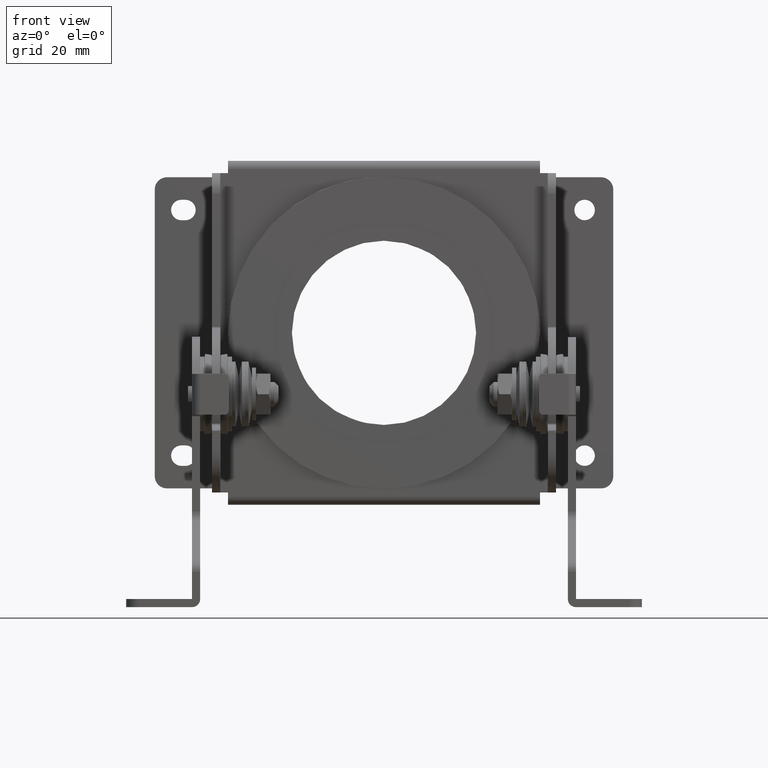
[diagram: clean part render]
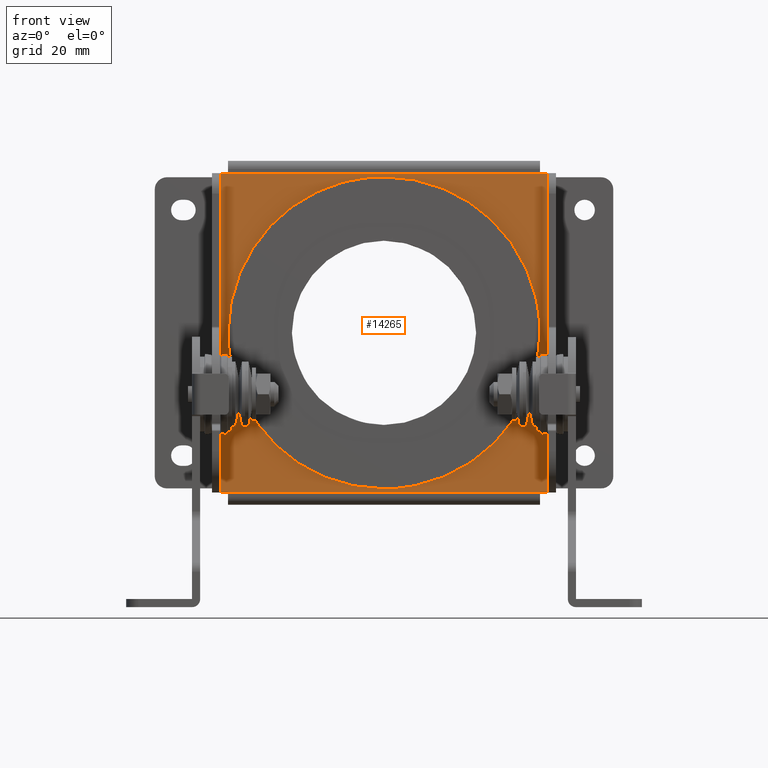
[diagram: same view with one face highlighted and labeled with its STEP entity id]
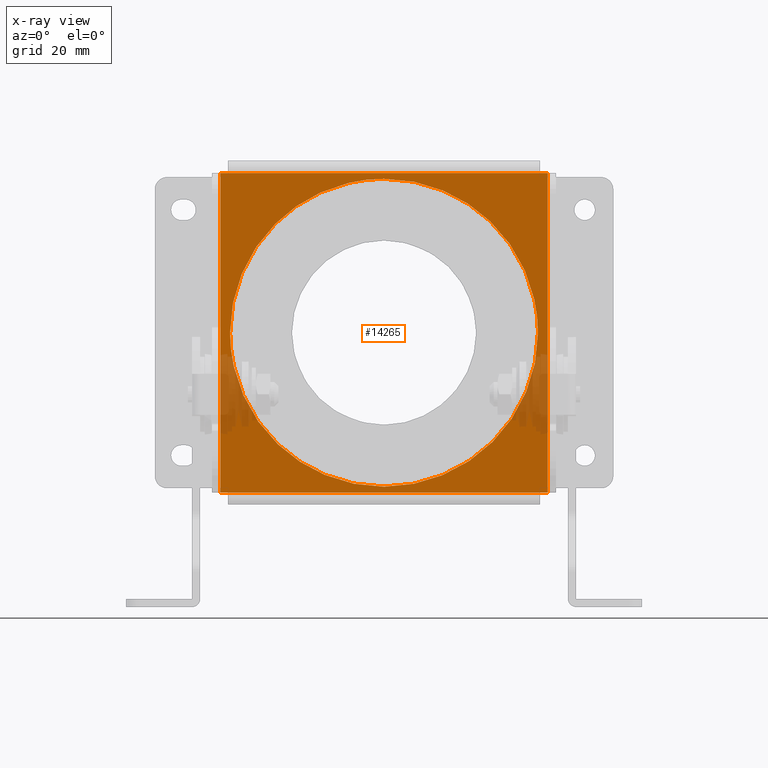
[diagram: x-ray of the same camera — body ghosted, the highlighted face saturated]
A machine part, front view. The second image highlights one B-rep face of the part: STEP entity #14265.
The next image is the same camera in x-ray: the body ghosted, the highlighted face saturated — about 11% of this face is hidden behind the body in this view.
In plain terms, the highlighted face is a freeform B-spline surface patch.
Its self-contained STEP definition (entity closure, byte-faithful):
#14031=CARTESIAN_POINT('',(40.0,-18.100000000000001,-39.0));
#14032=VERTEX_POINT('',#14031);
#14038=CARTESIAN_POINT('',(-40.0,-18.100000000000001,-39.0));
#14039=VERTEX_POINT('',#14038);
#14040=CARTESIAN_POINT('',(-40.0,-18.100000000000001,-39.0));
#14041=CARTESIAN_POINT('',(40.0,-18.100000000000001,-39.0));
#14042=QUASI_UNIFORM_CURVE('',1,(#14040,#14041),.UNSPECIFIED.,.F.,.U.);
#14043=EDGE_CURVE('',#14039,#14032,#14042,.T.);
#14067=CARTESIAN_POINT('',(-40.0,-18.100000000000001,39.0));
#14068=VERTEX_POINT('',#14067);
#14074=CARTESIAN_POINT('',(40.0,-18.100000000000001,39.0));
#14075=VERTEX_POINT('',#14074);
#14076=CARTESIAN_POINT('',(40.0,-18.100000000000001,39.0));
#14077=CARTESIAN_POINT('',(-40.0,-18.100000000000001,39.0));
#14078=QUASI_UNIFORM_CURVE('',1,(#14076,#14077),.UNSPECIFIED.,.F.,.U.);
#14079=EDGE_CURVE('',#14075,#14068,#14078,.T.);
#14095=CARTESIAN_POINT('',(40.0,-18.100000000000001,-39.0));
#14096=CARTESIAN_POINT('',(40.0,-18.100000000000001,39.0));
#14097=QUASI_UNIFORM_CURVE('',1,(#14095,#14096),.UNSPECIFIED.,.F.,.U.);
#14098=EDGE_CURVE('',#14032,#14075,#14097,.T.);
#14128=CARTESIAN_POINT('',(-40.0,-18.100000000000001,39.0));
#14129=CARTESIAN_POINT('',(-40.0,-18.100000000000001,-39.0));
#14130=QUASI_UNIFORM_CURVE('',1,(#14128,#14129),.UNSPECIFIED.,.F.,.U.);
#14131=EDGE_CURVE('',#14068,#14039,#14130,.T.);
#14156=CARTESIAN_POINT('',(-43.995999844944478,-18.100000000000001,42.896099848820867));
#14157=CARTESIAN_POINT('',(43.996001990711690,-18.100000000000001,42.896099848820882));
#14158=CARTESIAN_POINT('',(-43.995999844944478,-18.100000000000001,-42.896101940943900));
#14159=CARTESIAN_POINT('',(43.996001990711690,-18.100000000000001,-42.896101940943900));
#14160=B_SPLINE_SURFACE_WITH_KNOTS('',1,1,((#14156,#14158),(#14157,#14159)),.UNSPECIFIED.,.F.,.F.,.U.,(2,2),(2,2),(0.0,87.992001835656168),(0.0,85.792201789764789),.UNSPECIFIED.);
#14161=ORIENTED_EDGE('',*,*,#14098,.T.);
#14162=ORIENTED_EDGE('',*,*,#14079,.T.);
#14163=ORIENTED_EDGE('',*,*,#14131,.T.);
#14164=ORIENTED_EDGE('',*,*,#14043,.T.);
#14165=EDGE_LOOP('',(#14161,#14162,#14163,#14164));
#14166=FACE_OUTER_BOUND('',#14165,.T.);
#14167=CARTESIAN_POINT('',(37.599999999999802,-18.100000000000001,-0.000002591609643));
#14168=VERTEX_POINT('',#14167);
#14169=CARTESIAN_POINT('',(-1.136868E-013,-18.100000000000001,-37.600000000000001));
#14170=VERTEX_POINT('',#14169);
#14171=CARTESIAN_POINT('',(37.599999999999802,-18.100000000000001,-0.000002591609643));
#14172=CARTESIAN_POINT('',(37.600273259811303,-18.100000000000009,-2.384033059133242));
#14173=CARTESIAN_POINT('',(37.255022646272209,-18.100000000000001,-5.998367142394194));
#14174=CARTESIAN_POINT('',(35.977491413001523,-18.099999999999969,-11.234540037628451));
#14175=CARTESIAN_POINT('',(34.217199827161252,-18.100000000000119,-15.926389624523271));
#14176=CARTESIAN_POINT('',(31.433765511112220,-18.099999999999739,-20.910899937181330));
#14177=CARTESIAN_POINT('',(27.622681439306440,-18.100000000000151,-25.763696965627130));
#14178=CARTESIAN_POINT('',(23.401117085020100,-18.099999999999952,-29.613534345933189));
#14179=CARTESIAN_POINT('',(19.044688305981019,-18.100000000000009,-32.524195389576299));
#14180=CARTESIAN_POINT('',(14.785146632870839,-18.099999999999952,-34.684702803776247));
#14181=CARTESIAN_POINT('',(10.134410478104719,-18.100000000000200,-36.332773759506537));
#14182=CARTESIAN_POINT('',(5.075607173184503,-18.099999999999611,-37.371229185122260));
#14183=CARTESIAN_POINT('',(1.691871511921244,-18.100000000000641,-37.600069080697580));
#14184=CARTESIAN_POINT('',(-1.136868E-013,-18.100000000000001,-37.600000000000001));
#14185=B_SPLINE_CURVE_WITH_KNOTS('',3,(#14171,#14172,#14173,#14174,#14175,#14176,#14177,#14178,#14179,#14180,#14181,#14182,#14183,#14184),.UNSPECIFIED.,.F.,.U.,(4,1,1,1,1,1,1,1,1,1,1,4),(0.000000044102585,7.152021321191157,10.843409870805200,16.149775840275840,22.148285220469280,27.916054070602339,34.606631321037881,39.220864729841942,43.604391001631363,48.910759688643687,53.986418316047512,59.062033077855112),.UNSPECIFIED.);
#14186=EDGE_CURVE('',#14168,#14170,#14185,.T.);
#14187=ORIENTED_EDGE('',*,*,#14186,.T.);
#14188=CARTESIAN_POINT('',(-25.882131589441389,-18.100000000000001,-27.274075891427870));
#14189=VERTEX_POINT('',#14188);
#14190=CARTESIAN_POINT('',(-1.136868E-013,-18.100000000000001,-37.600000000000001));
#14191=CARTESIAN_POINT('',(-2.081530193489056,-18.099999999999991,-37.600152046303762));
#14192=CARTESIAN_POINT('',(-6.170209816476426,-18.100000000000030,-37.259648840593201));
#14193=CARTESIAN_POINT('',(-11.450317137331609,-18.100000000000009,-35.932996294806642));
#14194=CARTESIAN_POINT('',(-16.359740075898500,-18.099999999999870,-33.974367184560379));
#14195=CARTESIAN_POINT('',(-21.109771617649340,-18.100000000000271,-31.316719123715860));
#14196=CARTESIAN_POINT('',(-24.318446430760101,-18.099999999999682,-28.758222845762589));
#14197=CARTESIAN_POINT('',(-25.882131589441389,-18.100000000000001,-27.274075891427870));
#14198=B_SPLINE_CURVE_WITH_KNOTS('',3,(#14190,#14191,#14192,#14193,#14194,#14195,#14196,#14197),.UNSPECIFIED.,.F.,.U.,(4,1,1,1,1,4),(0.000000012175278,6.244579347875348,12.266151275389090,16.280498337576780,22.079048030540239,28.546646830175579),.UNSPECIFIED.);
#14199=EDGE_CURVE('',#14170,#14189,#14198,.T.);
#14200=ORIENTED_EDGE('',*,*,#14199,.T.);
#14201=CARTESIAN_POINT('',(-37.600000000000023,-18.100000000000001,0.000002591609067));
#14202=VERTEX_POINT('',#14201);
#14203=CARTESIAN_POINT('',(-25.882131589441389,-18.100000000000001,-27.274075891427870));
#14204=CARTESIAN_POINT('',(-27.265652727693869,-18.099999999999991,-25.961316381479961));
#14205=CARTESIAN_POINT('',(-29.190543656706371,-18.100000000000009,-23.833766378970520));
#14206=CARTESIAN_POINT('',(-31.829355155236790,-18.099999999999952,-20.148121900400930));
#14207=CARTESIAN_POINT('',(-33.678731908085332,-18.100000000000101,-16.893661494198739));
#14208=CARTESIAN_POINT('',(-35.311486781315807,-18.099999999999849,-13.093184730702861));
#14209=CARTESIAN_POINT('',(-36.540053513263963,-18.100000000000009,-9.224885864418905));
#14210=CARTESIAN_POINT('',(-37.398178048205267,-18.100000000000168,-4.768012373535420));
#14211=CARTESIAN_POINT('',(-37.600047539020132,-18.099999999999770,-1.589338509335666));
#14212=CARTESIAN_POINT('',(-37.600000000000023,-18.100000000000001,0.000002591609067));
#14213=B_SPLINE_CURVE_WITH_KNOTS('',3,(#14203,#14204,#14205,#14206,#14207,#14208,#14209,#14210,#14211,#14212),.UNSPECIFIED.,.F.,.U.,(4,1,1,1,1,1,1,4),(0.000000012465183,5.721630387047888,8.582456710432265,13.588889897603879,16.926500215505619,20.979325431127620,25.747364023791889,30.515390100626139),.UNSPECIFIED.);
#14214=EDGE_CURVE('',#14189,#14202,#14213,.T.);
#14215=ORIENTED_EDGE('',*,*,#14214,.T.);
#14216=CARTESIAN_POINT('',(-1.136868E-013,-18.100000000000001,37.600000000000001));
#14217=VERTEX_POINT('',#14216);
#14218=CARTESIAN_POINT('',(-37.600000000000023,-18.100000000000001,0.000002591609067));
#14219=CARTESIAN_POINT('',(-37.600264442152493,-18.100000000000080,2.384030342961044));
#14220=CARTESIAN_POINT('',(-37.255048430336387,-18.099999999999898,5.998376262158644));
#14221=CARTESIAN_POINT('',(-36.013963665962791,-18.100000000000041,11.084926631635060));
#14222=CARTESIAN_POINT('',(-34.389699272721977,-18.100000000000058,15.496265539895690));
#14223=CARTESIAN_POINT('',(-31.917886010497490,-18.099999999999760,20.120759632083590));
#14224=CARTESIAN_POINT('',(-28.807854309163009,-18.100000000000531,24.341091966427200));
#14225=CARTESIAN_POINT('',(-25.696137685814239,-18.099999999999390,27.549684548366940));
#14226=CARTESIAN_POINT('',(-22.321661091973699,-18.099999999999010,30.353882682302320));
#14227=CARTESIAN_POINT('',(-19.232855588046348,-18.100000000002801,32.390461038485789));
#14228=CARTESIAN_POINT('',(-14.997710451005780,-18.099999999996189,34.587912473479783));
#14229=CARTESIAN_POINT('',(-10.511961655140651,-18.100000000002311,36.255337468184230));
#14230=CARTESIAN_POINT('',(-5.075601631899381,-18.099999999998499,37.371219612605977));
#14231=CARTESIAN_POINT('',(-1.691871510884756,-18.100000000001600,37.600066075041369));
#14232=CARTESIAN_POINT('',(-1.136868E-013,-18.100000000000001,37.600000000000001));
#14233=B_SPLINE_CURVE_WITH_KNOTS('',3,(#14218,#14219,#14220,#14221,#14222,#14223,#14224,#14225,#14226,#14227,#14228,#14229,#14230,#14231,#14232),.UNSPECIFIED.,.F.,.U.,(4,1,1,1,1,1,1,1,1,1,1,1,4),(0.000000044099416,7.152021321188805,10.843409870803370,15.688356261206989,21.225420885340242,26.531782484351481,31.376667942071219,34.606631321038194,39.682289948568631,42.450835665380083,48.910759688643743,53.986418316047683,59.062033077855418),.UNSPECIFIED.);
#14234=EDGE_CURVE('',#14202,#14217,#14233,.T.);
#14235=ORIENTED_EDGE('',*,*,#14234,.T.);
#14236=CARTESIAN_POINT('',(25.882131589441070,-18.100000000000001,27.274075891427760));
#14237=VERTEX_POINT('',#14236);
#14238=CARTESIAN_POINT('',(-1.136868E-013,-18.100000000000001,37.600000000000001));
#14239=CARTESIAN_POINT('',(2.081537417846928,-18.099999999999959,37.600171540934127));
#14240=CARTESIAN_POINT('',(5.278100204140232,-18.100000000000030,37.333834827452499));
#14241=CARTESIAN_POINT('',(9.717086573631974,-18.100000000000030,36.385044567055843));
#14242=CARTESIAN_POINT('',(13.263731002843331,-18.099999999999898,35.255081044577032));
#14243=CARTESIAN_POINT('',(17.355731335060970,-18.100000000000009,33.465807316769883));
#14244=CARTESIAN_POINT('',(21.647735204016140,-18.099999999999870,30.911693552042269));
#14245=CARTESIAN_POINT('',(24.534083992716749,-18.100000000000222,28.553456293341579));
#14246=CARTESIAN_POINT('',(25.882131589441070,-18.100000000000001,27.274075891427760));
#14247=B_SPLINE_CURVE_WITH_KNOTS('',3,(#14238,#14239,#14240,#14241,#14242,#14243,#14244,#14245,#14246),.UNSPECIFIED.,.F.,.U.,(4,1,1,1,1,1,4),(0.000000012172730,6.244579347874407,9.589891325903906,13.604282742023081,17.395604589485579,22.971131231769249,28.546646830175529),.UNSPECIFIED.);
#14248=EDGE_CURVE('',#14217,#14237,#14247,.T.);
#14249=ORIENTED_EDGE('',*,*,#14248,.T.);
#14250=CARTESIAN_POINT('',(25.882131589441070,-18.100000000000001,27.274075891427760));
#14251=CARTESIAN_POINT('',(27.035034290416199,-18.100000000000001,26.180082270675339));
#14252=CARTESIAN_POINT('',(29.201793933478960,-18.100000000000058,23.845588215073821));
#14253=CARTESIAN_POINT('',(31.844017217046950,-18.099999999999898,20.155227825542521));
#14254=CARTESIAN_POINT('',(33.804287945979468,-18.100000000000200,16.601291813989761));
#14255=CARTESIAN_POINT('',(35.437122838416542,-18.099999999999799,12.800852888512580));
#14256=CARTESIAN_POINT('',(36.571120841923211,-18.100000000000090,9.066733797020927));
#14257=CARTESIAN_POINT('',(37.400083100212299,-18.099999999999898,4.609061001187876));
#14258=CARTESIAN_POINT('',(37.600086934986493,-18.100000000000129,1.748274467633022));
#14259=CARTESIAN_POINT('',(37.599999999999802,-18.100000000000001,-0.000002591609643));
#14260=B_SPLINE_CURVE_WITH_KNOTS('',3,(#14250,#14251,#14252,#14253,#14254,#14255,#14256,#14257,#14258,#14259),.UNSPECIFIED.,.F.,.U.,(4,1,1,1,1,1,1,4),(0.000000012456997,4.768026089295439,9.536064681948208,13.588889897601140,16.926500215503811,21.932933402650072,25.270565713425562,30.515390100626700),.UNSPECIFIED.);
#14261=EDGE_CURVE('',#14237,#14168,#14260,.T.);
#14262=ORIENTED_EDGE('',*,*,#14261,.T.);
#14263=EDGE_LOOP('',(#14187,#14200,#14215,#14235,#14249,#14262));
#14264=FACE_BOUND('',#14263,.T.);
#14265=ADVANCED_FACE('',(#14166,#14264),#14160,.F.);